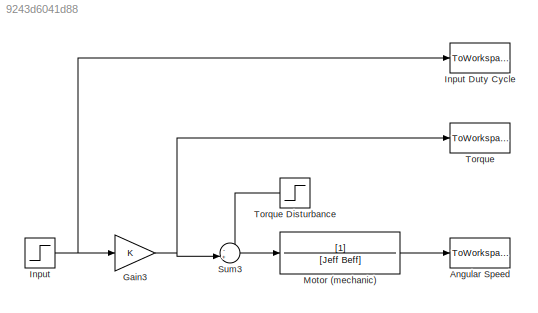
MODEL slx_9243d6041d88
KIND model
CONFIG AbsTol = auto
CONFIG EnableMultiTasking = on
CONFIG FixedStep = TsSim
CONFIG InitFcn = LEGO_motor_init
CONFIG MaxStep = auto
CONFIG MinStep = auto
CONFIG RelTol = 1e-6
CONFIG SampleTimeConstraint = Unconstrained
CONFIG SolverName = VariableStepAuto
CONFIG StartTime = 0.0
CONFIG StopFcn = LEGO_motor_plot
CONFIG StopTime = tTot
BLOCK [ToWorkspace] Angular Speed 
  MaxDataPoints = inf
  Ports = [1]
  SampleTime = -1
  VariableName = w
BLOCK [Gain] Gain3
  Gain = K
BLOCK [Step] Input
  After = uStep
  SampleTime = 0
  Time = tStep
BLOCK [ToWorkspace] Input Duty Cycle
  MaxDataPoints = inf
  Ports = [1]
  SampleTime = -1
  VariableName = u
BLOCK [TransferFcn] Motor (mechanic) 
  Denominator = [Jeff Beff]
BLOCK [Sum] Sum3
  Inputs = -+|
  Ports = [2, 1]
BLOCK [ToWorkspace] Torque 
  MaxDataPoints = inf
  Ports = [1]
  SampleTime = -1
  VariableName = Tq
BLOCK [Step] Torque Disturbance 
  After = TqDist
  NameLocation = top
  SampleTime = 0
  Time = tStep
NET Gain3:1 -> Sum3:2, Torque :1
NET Input:1 -> Gain3:1, Input Duty Cycle:1
LINE Motor (mechanic) :1 -> Angular Speed :1
LINE Sum3:1 -> Motor (mechanic) :1
LINE Torque Disturbance :1 -> Sum3:1
note: NET lines group one-source signal fan-out (src -> all destinations, sorted); 1:1 wires keep LINE
